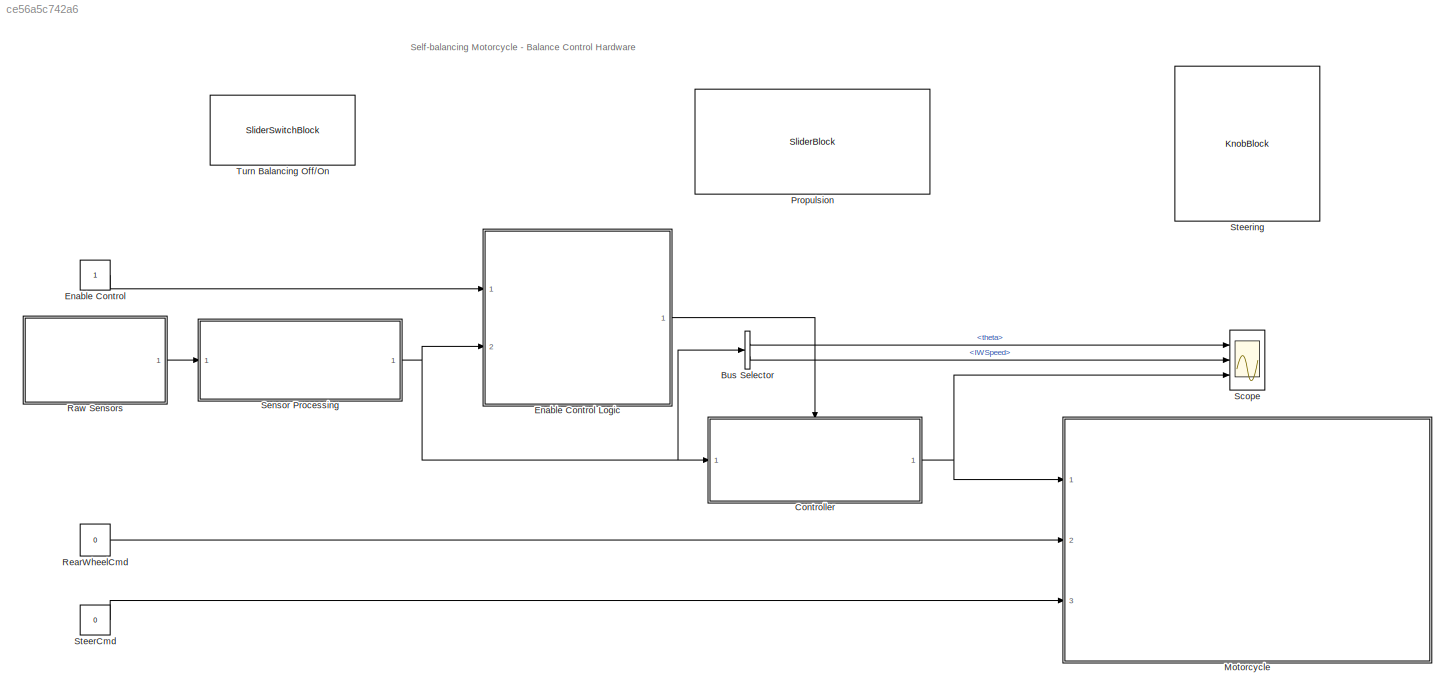
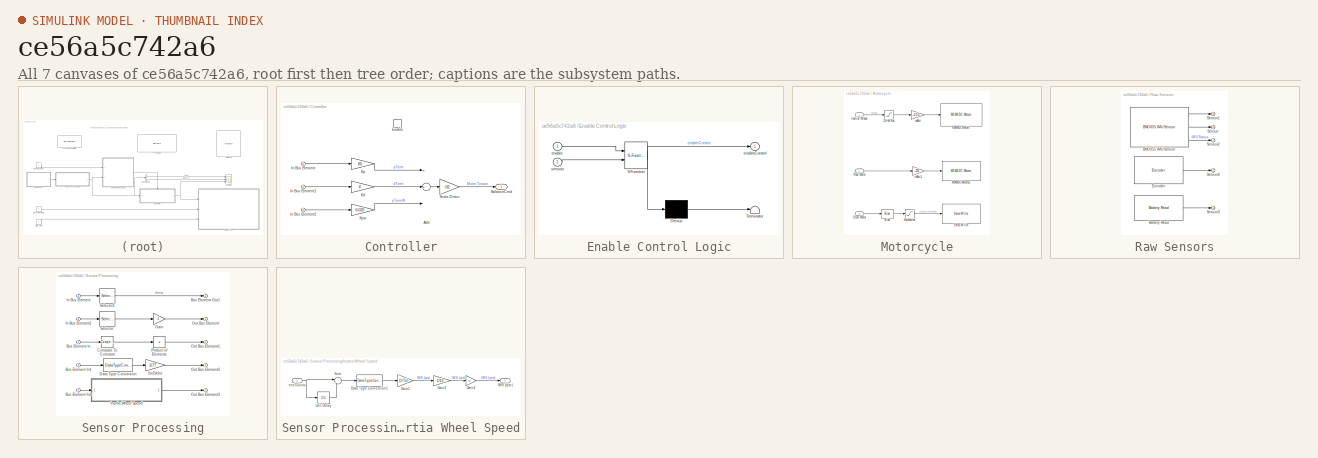
[diagram: thumbnail index - all 7 canvases of the model, root first then tree order]
MODEL slx_ce56a5c742a6
KIND model
CONFIG AbsTol = auto
CONFIG EnableMultiTasking = on
CONFIG FixedStep = auto
CONFIG MaxStep = auto
CONFIG MinStep = auto
CONFIG PreLoadFcn = createSensorBus;\nTs = 0.01;\nTs_wifi = 0.1;\n
CONFIG RelTol = 1e-3
CONFIG SampleTimeConstraint = Unconstrained
CONFIG Solver = FixedStepAuto
CONFIG SolverName = FixedStepAuto
CONFIG StartTime = 0.0
CONFIG StopTime = inf
BLOCK [BusSelector] Bus Selector
  OutputAsBus = off
  OutputSignals = theta,IWSpeed
  Ports = [1, 2]
BLOCK [SubSystem] Controller
  Ports = [1, 1, 1]
  RequestExecContextInheritance = off
BLOCK [Sum] Controller/Add
  InputSameDT = off
  Inputs = 3
  OutDataTypeStr = Inherit: Inherit via internal rule
  Ports = [3, 1]
  SaturateOnIntegerOverflow = off
BLOCK [Outport] Controller/BalanceCmd
  IconDisplay = Port number
  InitialOutput = 0
  OutputWhenDisabled = reset
BLOCK [EnablePort] Controller/Enable
  Ports = []
  StatesWhenEnabling = reset
BLOCK [Inport] Controller/In Bus Element
  IconDisplay = Port number
BLOCK [Inport] Controller/In Bus Element1
  IconDisplay = Port number
BLOCK [Inport] Controller/In Bus Element2
  IconDisplay = Port number
BLOCK [Gain] Controller/Kd
  Gain = 6
  OutDataTypeStr = Inherit: Inherit via internal rule
  ParamDataTypeStr = Inherit: Inherit via internal rule
  SaturateOnIntegerOverflow = off
BLOCK [Gain] Controller/Kp
  Gain = 60
  OutDataTypeStr = Inherit: Inherit via internal rule
  ParamDataTypeStr = Inherit: Inherit via internal rule
  SaturateOnIntegerOverflow = off
BLOCK [Gain] Controller/Kpw
  Gain = 0.025
  OutDataTypeStr = Inherit: Inherit via internal rule
  ParamDataTypeStr = Inherit: Inherit via internal rule
  SaturateOnIntegerOverflow = off
BLOCK [Gain] Controller/Scale Down
  Gain = .02
  OutDataTypeStr = Inherit: Inherit via internal rule
  ParamDataTypeStr = Inherit: Inherit via internal rule
  SaturateOnIntegerOverflow = off
BLOCK [Constant] Enable Control
  SampleTime = Ts
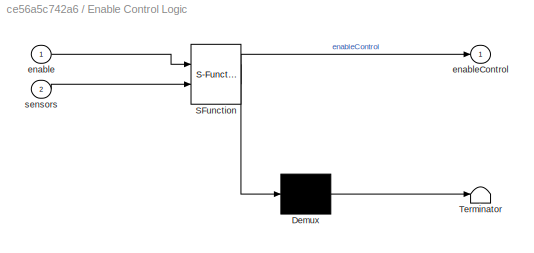
BLOCK [SubSystem] Enable Control Logic
  ErrorFcn = Stateflow.Translate.translate
  PermitHierarchicalResolution = ExplicitOnly
  Ports = [2, 1]
  RequestExecContextInheritance = off
  SFBlockType = Chart
  TreatAsAtomicUnit = on
BLOCK [Demux] Enable Control Logic/ Demux 
  Outputs = 1
  Ports = [1, 1]
BLOCK [S-Function] Enable Control Logic/ SFunction 
  EnableBusSupport = on
  FunctionName = sf_sfun
  PortCounts = [2 2]
  Ports = [2, 2]
  SFcnIsStateOwnerBlock = off
  SFunctionDeploymentMode = off
  Tag = Stateflow S-Function motorcycleHW 3
BLOCK [Terminator] Enable Control Logic/ Terminator 
BLOCK [Inport] Enable Control Logic/enable
  IconDisplay = Port number
BLOCK [Outport] Enable Control Logic/enableControl
  IconDisplay = Port number
BLOCK [Inport] Enable Control Logic/sensors
  IconDisplay = Port number
  Port = 2
BLOCK [SubSystem] Motorcycle
  Ports = [3]
  RequestExecContextInheritance = off
BLOCK [Bias] Motorcycle/Bias
  Bias = 90
  SaturateOnIntegerOverflow = off
BLOCK [Saturate] Motorcycle/Drive Sat
  InputPortMap = u0
  LowerLimit = -1
  Ports = [1, 1]
  UpperLimit = 1
BLOCK [Inport] Motorcycle/Inertial Wheel
  IconDisplay = Port number
BLOCK [Reference] Motorcycle/M3M4DCMotors  REF=mkrmotorcarrierlib/M3 M4 DC Motors
  Ports = [1]
  SourceBlock = mkrmotorcarrierlib/M3 M4 DC Motors
  SourceProductName = Simulink Support for Arduino MKR Motor Shield
  SourceType = DC Motor
BLOCK [Reference] Motorcycle/M3M4DCMotors2  REF=mkrmotorcarrierlib/M3 M4 DC Motors
  Ports = [1]
  SourceBlock = mkrmotorcarrierlib/M3 M4 DC Motors
  SourceProductName = Simulink Support for Arduino MKR Motor Carrier
  SourceType = DC Motor
BLOCK [Inport] Motorcycle/Rear Motor
  IconDisplay = Port number
  Port = 2
BLOCK [Saturate] Motorcycle/Saturation
  InputPortMap = u0
  LowerLimit = 60
  Ports = [1, 1]
  UpperLimit = 120
BLOCK [Reference] Motorcycle/Servo Write  REF=mkrmotorcarrierlib/Servo Write
  Ports = [1]
  SourceBlock = mkrmotorcarrierlib/Servo Write
  SourceProductName = Simulink Support for Arduino MKR Motor Shield
  SourceType = motorcarrier.blocks.mkrmotorcarrier_ServoMotor
BLOCK [Inport] Motorcycle/Steer Motor
  IconDisplay = Port number
  Port = 3
BLOCK [Gain] Motorcycle/to8bit
  Gain = -255
  OutDataTypeStr = Inherit: Inherit via internal rule
  ParamDataTypeStr = Inherit: Inherit via internal rule
  SaturateOnIntegerOverflow = off
BLOCK [Gain] Motorcycle/to8bit1
  Gain = -255
  OutDataTypeStr = Inherit: Inherit via internal rule
  ParamDataTypeStr = Inherit: Inherit via internal rule
  SaturateOnIntegerOverflow = off
BLOCK [SliderBlock] Propulsion
  LabelPosition = Hide
  ScaleMax = 1
  ScaleMin = -1
BLOCK [SubSystem] Raw Sensors
  Ports = [0, 1]
  RequestExecContextInheritance = off
  ShowPortLabels = none
BLOCK [Reference] Raw Sensors/BNO055 IMU Sensor  REF=arduinosensorlib/BNO055 IMU Sensor
  Ports = [0, 3]
  SourceBlock = arduinosensorlib/BNO055 IMU Sensor
  SourceProductName = Simulink Support for Arduino Sensors
  SourceType = Arduino BNO055
BLOCK [Reference] Raw Sensors/Battery Read  REF=mkrmotorcarrierlib/Battery Read
  Ports = [0, 1]
  SourceBlock = mkrmotorcarrierlib/Battery Read
  SourceProductName = Simulink Support for Arduino MKR Motor Shield
  SourceType = motorcarrier.blocks.mkrmotorcarrier_Battery
BLOCK [Reference] Raw Sensors/Encoder  REF=mkrmotorcarrierlib/Encoder
  Ports = [0, 1]
  SourceBlock = mkrmotorcarrierlib/Encoder
  SourceProductName = Simulink Support for Arduino MKR Motor Carrier
  SourceType = motorcarrier.blocks.mkrmotorcarrier_Encoder
BLOCK [Outport] Raw Sensors/Sensor
  IconDisplay = Port number
BLOCK [Outport] Raw Sensors/Sensor1
  IconDisplay = Port number
BLOCK [Outport] Raw Sensors/Sensor2
  IconDisplay = Port number
BLOCK [Outport] Raw Sensors/Sensor3
  IconDisplay = Port number
BLOCK [Outport] Raw Sensors/Sensor4
  IconDisplay = Port number
BLOCK [Constant] RearWheelCmd
  SampleTime = Ts
  Value = 0
BLOCK [Scope] Scope
  Floating = off
  NumInputPorts = 3
  Ports = [3]
  ScopeSpecificationString = Simulink.scopes.TimeScopeBlockCfg('CurrentConfiguration', extmgr.ConfigurationSet(extmgr.Configuration('Core','General UI',true),extmgr.Configuration('Core','Source UI',true),extmgr.Configuration('Sources','WiredSimulink',true),extmgr.Configuration('Visuals','Time Domain',true,'SerializedDisplays',{struct('MinYLimReal','-101.92188','MaxYLimReal','90.42188','YLabelReal','','MinYLimMag',' 0.00000','...<+2657ch>
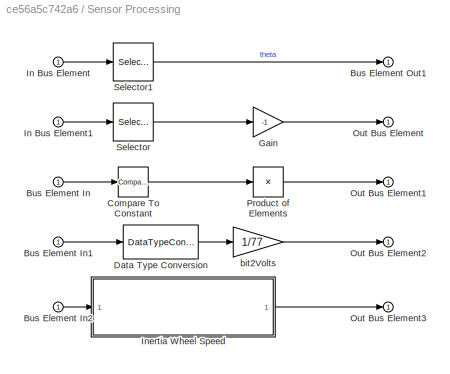
BLOCK [SubSystem] Sensor Processing
  Ports = [1, 1]
  RequestExecContextInheritance = off
  ShowPortLabels = none
BLOCK [Inport] Sensor Processing/Bus Element In
  IconDisplay = Port number
BLOCK [Inport] Sensor Processing/Bus Element In1
  IconDisplay = Port number
BLOCK [Inport] Sensor Processing/Bus Element In2
  IconDisplay = Port number
BLOCK [Outport] Sensor Processing/Bus Element Out1
  IconDisplay = Port number
BLOCK [Reference] Sensor Processing/Compare To Constant  REF=simulink/Logic and Bit
Operations/Compare
To Constant
  Ports = [1, 1]
  SourceBlock = simulink/Logic and Bit\nOperations/Compare\nTo Constant
  SourceProductBaseCode = SL
  SourceProductName = Simulink
  SourceType = Compare To Constant
BLOCK [DataTypeConversion] Sensor Processing/Data Type Conversion
  RndMeth = Floor
  SaturateOnIntegerOverflow = off
BLOCK [Gain] Sensor Processing/Gain
  Gain = -1
  OutDataTypeStr = Inherit: Inherit via internal rule
  ParamDataTypeStr = Inherit: Inherit via internal rule
  SaturateOnIntegerOverflow = off
BLOCK [Inport] Sensor Processing/In Bus Element
  IconDisplay = Port number
BLOCK [Inport] Sensor Processing/In Bus Element1
  IconDisplay = Port number
BLOCK [SubSystem] Sensor Processing/Inertia Wheel Speed
  Ports = [1, 1]
  RequestExecContextInheritance = off
BLOCK [DataTypeConversion] Sensor Processing/Inertia Wheel Speed/Data Type Conversion1
  OutDataTypeStr = double
  RndMeth = Floor
  SaturateOnIntegerOverflow = off
BLOCK [Gain] Sensor Processing/Inertia Wheel Speed/Gain1
  Gain = (1/Ts)
  OutDataTypeStr = Inherit: Inherit via internal rule
  ParamDataTypeStr = Inherit: Inherit via internal rule
  SaturateOnIntegerOverflow = off
BLOCK [Gain] Sensor Processing/Inertia Wheel Speed/Gain2
  Gain = 1/12
  OutDataTypeStr = double
  ParamDataTypeStr = Inherit: Inherit via internal rule
  SaturateOnIntegerOverflow = off
BLOCK [Gain] Sensor Processing/Inertia Wheel Speed/Gain3
  Gain = 60
  OutDataTypeStr = double
  ParamDataTypeStr = Inherit: Inherit via internal rule
  SaturateOnIntegerOverflow = off
BLOCK [Outport] Sensor Processing/Inertia Wheel Speed/IWS (rpm)
  IconDisplay = Port number
BLOCK [Sum] Sensor Processing/Inertia Wheel Speed/Sum
  IconShape = round
  InputSameDT = off
  Inputs = |+-
  OutDataTypeStr = Inherit: Inherit via internal rule
  Ports = [2, 1]
  SaturateOnIntegerOverflow = off
BLOCK [UnitDelay] Sensor Processing/Inertia Wheel Speed/Unit Delay
  HasFrameUpgradeWarning = on
  SampleTime = -1
BLOCK [Inport] Sensor Processing/Inertia Wheel Speed/encCounts
  IconDisplay = Port number
BLOCK [Outport] Sensor Processing/Out Bus Element
  IconDisplay = Port number
BLOCK [Outport] Sensor Processing/Out Bus Element1
  IconDisplay = Port number
BLOCK [Outport] Sensor Processing/Out Bus Element2
  IconDisplay = Port number
BLOCK [Outport] Sensor Processing/Out Bus Element3
  IconDisplay = Port number
BLOCK [Product] Sensor Processing/Product of Elements
  InputSameDT = off
  Inputs = *
  OutDataTypeStr = Inherit: Inherit via internal rule
  Ports = [1, 1]
  RndMeth = Floor
  SaturateOnIntegerOverflow = off
BLOCK [Selector] Sensor Processing/Selector
  IndexOptions = Index vector (dialog)
  Indices = 2
  InputPortWidth = 3
  OutputSizes = 1
  Ports = [1, 1]
BLOCK [Selector] Sensor Processing/Selector1
  IndexOptions = Index vector (dialog)
  Indices = 2
  InputPortWidth = 3
  OutputSizes = 1
  Ports = [1, 1]
BLOCK [Gain] Sensor Processing/bit2Volts
  Gain = 1/77
  OutDataTypeStr = Inherit: Inherit via internal rule
  ParamDataTypeStr = Inherit: Inherit via internal rule
  SaturateOnIntegerOverflow = off
BLOCK [Constant] SteerCmd
  SampleTime = Ts
  Value = 0
BLOCK [KnobBlock] Steering
  LabelPosition = Hide
  ScaleMax = 30
  ScaleMin = -30
BLOCK [SliderSwitchBlock] Turn Balancing Off//On
  LabelPosition = Hide
ANNOTATION (root): Self-balancing Motorcycle - Balance Control Hardware
LINE Bus Selector:1 -> Scope:1
LINE Bus Selector:2 -> Scope:2
LINE Controller/Add:1 -> Controller/Scale Down:1
LINE Controller/In Bus Element1:1 -> Controller/Kd:1
LINE Controller/In Bus Element2:1 -> Controller/Kpw:1
LINE Controller/In Bus Element:1 -> Controller/Kp:1
LINE Controller/Kd:1 -> Controller/Add:2
LINE Controller/Kp:1 -> Controller/Add:1
LINE Controller/Kpw:1 -> Controller/Add:3
LINE Controller/Scale Down:1 -> Controller/BalanceCmd:1
NET Controller:1 -> Motorcycle:1, Scope:3
LINE Enable Control Logic:1 -> Controller:enable
LINE Enable Control:1 -> Enable Control Logic:1
LINE Motorcycle/Bias:1 -> Motorcycle/Saturation:1
LINE Motorcycle/Drive Sat:1 -> Motorcycle/to8bit:1
LINE Motorcycle/Inertial Wheel:1 -> Motorcycle/Drive Sat:1
LINE Motorcycle/Rear Motor:1 -> Motorcycle/to8bit1:1
LINE Motorcycle/Saturation:1 -> Motorcycle/Servo Write:1
LINE Motorcycle/Steer Motor:1 -> Motorcycle/Bias:1
LINE Motorcycle/to8bit1:1 -> Motorcycle/M3M4DCMotors2:1
LINE Motorcycle/to8bit:1 -> Motorcycle/M3M4DCMotors:1
LINE Raw Sensors/BNO055 IMU Sensor:1 -> Raw Sensors/Sensor1:1
LINE Raw Sensors/BNO055 IMU Sensor:2 -> Raw Sensors/Sensor:1
LINE Raw Sensors/BNO055 IMU Sensor:3 -> Raw Sensors/Sensor2:1
LINE Raw Sensors/Battery Read:1 -> Raw Sensors/Sensor3:1
LINE Raw Sensors/Encoder:1 -> Raw Sensors/Sensor4:1
LINE Raw Sensors:1 -> Sensor Processing:1
LINE RearWheelCmd:1 -> Motorcycle:2
LINE Sensor Processing/Bus Element In1:1 -> Sensor Processing/Data Type Conversion:1
LINE Sensor Processing/Bus Element In2:1 -> Sensor Processing/Inertia Wheel Speed:1
LINE Sensor Processing/Bus Element In:1 -> Sensor Processing/Compare To Constant:1
LINE Sensor Processing/Compare To Constant:1 -> Sensor Processing/Product of Elements:1
LINE Sensor Processing/Data Type Conversion:1 -> Sensor Processing/bit2Volts:1
LINE Sensor Processing/Gain:1 -> Sensor Processing/Out Bus Element:1
LINE Sensor Processing/In Bus Element1:1 -> Sensor Processing/Selector:1
LINE Sensor Processing/In Bus Element:1 -> Sensor Processing/Selector1:1
LINE Sensor Processing/Inertia Wheel Speed/Data Type Conversion1:1 -> Sensor Processing/Inertia Wheel Speed/Gain1:1
LINE Sensor Processing/Inertia Wheel Speed/Gain1:1 -> Sensor Processing/Inertia Wheel Speed/Gain2:1
LINE Sensor Processing/Inertia Wheel Speed/Gain2:1 -> Sensor Processing/Inertia Wheel Speed/Gain3:1
LINE Sensor Processing/Inertia Wheel Speed/Gain3:1 -> Sensor Processing/Inertia Wheel Speed/IWS (rpm):1
LINE Sensor Processing/Inertia Wheel Speed/Sum:1 -> Sensor Processing/Inertia Wheel Speed/Data Type Conversion1:1
LINE Sensor Processing/Inertia Wheel Speed/Unit Delay:1 -> Sensor Processing/Inertia Wheel Speed/Sum:2
NET Sensor Processing/Inertia Wheel Speed/encCounts:1 -> Sensor Processing/Inertia Wheel Speed/Sum:1, Sensor Processing/Inertia Wheel Speed/Unit Delay:1
LINE Sensor Processing/Inertia Wheel Speed:1 -> Sensor Processing/Out Bus Element3:1
LINE Sensor Processing/Product of Elements:1 -> Sensor Processing/Out Bus Element1:1
LINE Sensor Processing/Selector1:1 -> Sensor Processing/Bus Element Out1:1
LINE Sensor Processing/Selector:1 -> Sensor Processing/Gain:1
LINE Sensor Processing/bit2Volts:1 -> Sensor Processing/Out Bus Element2:1
NET Sensor Processing:1 -> Bus Selector:1, Controller:1, Enable Control Logic:2
LINE SteerCmd:1 -> Motorcycle:3
note: NET lines group one-source signal fan-out (src -> all destinations, sorted); 1:1 wires keep LINE
CHART Enable Control Logic states=14 transitions=16
  STATE_LABEL 'checkIMUCalib'
  STATE_LABEL 'imuNotCalibrated\nentry:\nisIMUCalibrated = false;'
  STATE_LABEL 'imuCalibrated\nentry:\nisIMUCalibrated = true;'
  STATE_LABEL '[sensors.imuCalibrated == true]'
  STATE_LABEL 'imuNotCalibrated\nentry:\nisIMUCalibrated = false;'
  STATE_LABEL 'imuCalibrated\nentry:\nisIMUCalibrated = true;'
  STATE_LABEL 'checkFallen\ndu: t = sensors.theta;'
  STATE_LABEL 'Standing\nentry:\nisFallen = false;'
  STATE_LABEL 'Fallen\nentry:\nisFallen = true;'
  STATE_LABEL '[abs(t) >6]'
  STATE_LABEL '[abs(t) <6]'
  STATE_LABEL 'Standing\nentry:\nisFallen = false;'
  STATE_LABEL 'Fallen\nentry:\nisFallen = true;'
  STATE_LABEL 'Running'
  STATE_LABEL 'Waiting\nentry: enableControl = false'
  STATE_LABEL 'Running'
  STATE_LABEL 'On\nenableControl = true;\n'
  STATE_LABEL 'Off\nenableControl = false;\n'
  STATE_LABEL '[isIMUCalibrated && (isBatteryOK) && not(isFallen)]'
  STATE_LABEL '[enable]'
  STATE_LABEL '[not(enable)]'
  STATE_LABEL 'Waiting\nentry: enableControl = false'
  STATE_LABEL 'Running'
  STATE_LABEL 'On\nenableControl = true;\n'
  STATE_LABEL 'Off\nenableControl = false;\n'
  STATE_LABEL '[isIMUCalibrated && (isBatteryOK) && not(isFallen)]'
  STATE_LABEL 'On\nenableControl = true;\n'
  STATE_LABEL 'Off\nenableControl = false;\n'
  STATE_LABEL 'checkBattery'
  STATE_LABEL 'batteryNotCharged\nentry:\nisBatteryOK = false;'
  STATE_LABEL 'batteryCharged\nentry:\nisBatteryOK = true;'
  STATE_LABEL '[sensors.Volt < 11]'
  STATE_LABEL '[sensors.Volt >= 11]'
  STATE_LABEL 'batteryNotCharged\nentry:\nisBatteryOK = false;'
  STATE_LABEL 'batteryCharged\nentry:\nisBatteryOK = true;'
